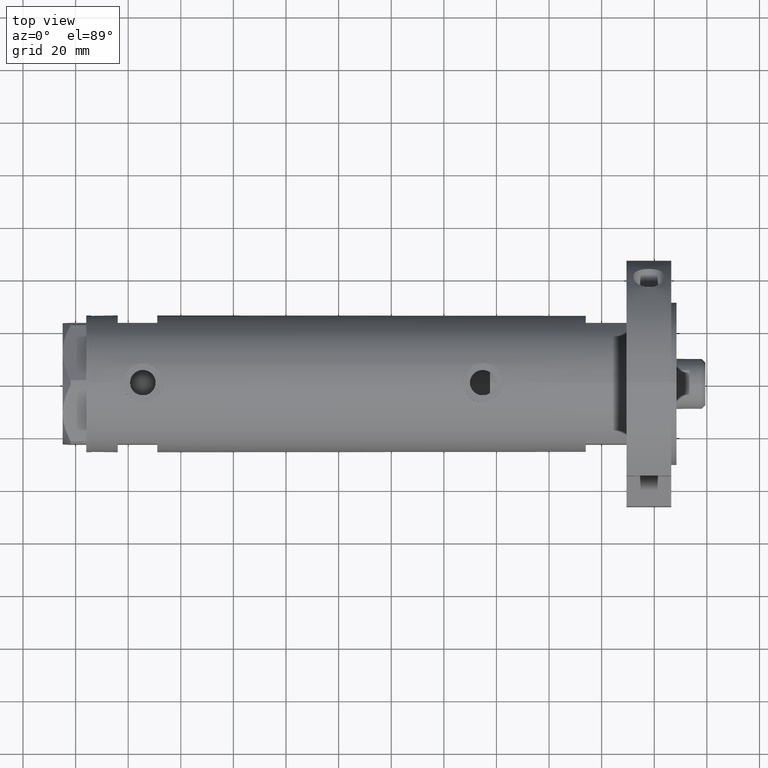
[diagram: clean part render]
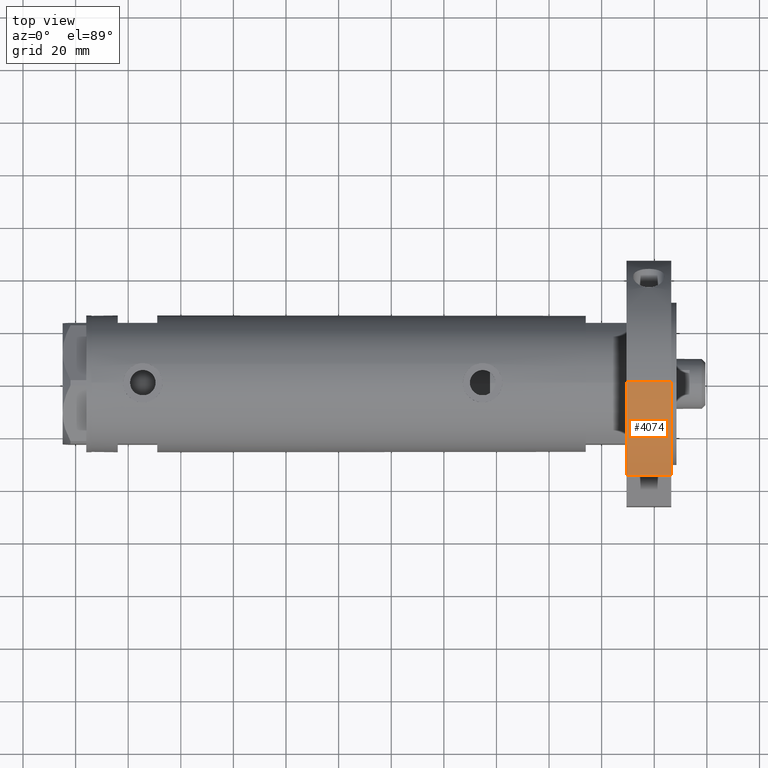
[diagram: same view with one face highlighted and labeled with its STEP entity id]
A machine part, top view. The second image highlights one B-rep face of the part: STEP entity #4074.
In plain terms, the highlighted cylindrical surface (partial cylindrical patch) has radius 47 mm, axis along (-1, -0, 0).
Its self-contained STEP definition (entity closure, byte-faithful):
#230 = DIRECTION ( 'NONE',  ( 0.000000000000000000, 0.000000000000000000, 1.000000000000000000 ) ) ;
#586 = FACE_OUTER_BOUND ( 'NONE', #5722, .T. ) ;
#611 = LINE ( 'NONE', #6011, #1357 ) ;
#627 = ORIENTED_EDGE ( 'NONE', *, *, #2639, .F. ) ;
#770 = VERTEX_POINT ( 'NONE', #6211 ) ;
#858 = VERTEX_POINT ( 'NONE', #2864 ) ;
#861 = CIRCLE ( 'NONE', #4645, 46.99999999999999289 ) ;
#992 = DIRECTION ( 'NONE',  ( 1.000000000000000000, 0.000000000000000000, 0.000000000000000000 ) ) ;
#1049 = DIRECTION ( 'NONE',  ( -0.000000000000000000, -0.000000000000000000, -1.000000000000000000 ) ) ;
#1158 = VERTEX_POINT ( 'NONE', #3111 ) ;
#1357 = VECTOR ( 'NONE', #4569, 1000.000000000000000 ) ;
#1512 = DIRECTION ( 'NONE',  ( -1.000000000000000000, 0.000000000000000000, 0.000000000000000000 ) ) ;
#1522 = DIRECTION ( 'NONE',  ( -0.000000000000000000, -0.000000000000000000, 1.000000000000000000 ) ) ;
#1617 = CYLINDRICAL_SURFACE ( 'NONE', #4336, 46.99999999999999289 ) ;
#1675 = CARTESIAN_POINT ( 'NONE',  ( 0.000000000000000000, 0.000000000000000000, 17.00000000000000000 ) ) ;
#1807 = EDGE_CURVE ( 'NONE', #1158, #4574, #611, .T. ) ;
#1826 = CARTESIAN_POINT ( 'NONE',  ( 46.99999999999999289, 5.755839955992559063E-15, 0.000000000000000000 ) ) ;
#2639 = EDGE_CURVE ( 'NONE', #1158, #770, #6196, .T. ) ;
#2864 = CARTESIAN_POINT ( 'NONE',  ( 30.83217135699462830, 35.47361286101148892, 0.000000000000000000 ) ) ;
#3111 = CARTESIAN_POINT ( 'NONE',  ( 46.99999999999999289, 5.755839955992559063E-15, 17.00000000000000000 ) ) ;
#3866 = DIRECTION ( 'NONE',  ( 1.000000000000000000, 0.000000000000000000, 0.000000000000000000 ) ) ;
#3944 = ORIENTED_EDGE ( 'NONE', *, *, #5548, .T. ) ;
#4033 = ORIENTED_EDGE ( 'NONE', *, *, #1807, .T. ) ;
#4064 = LINE ( 'NONE', #5439, #4874 ) ;
#4074 = ADVANCED_FACE ( 'NONE', ( #586 ), #1617, .T. ) ;
#4336 = AXIS2_PLACEMENT_3D ( 'NONE', #5067, #1049, #1512 ) ;
#4362 = DIRECTION ( 'NONE',  ( 0.000000000000000000, 0.000000000000000000, 1.000000000000000000 ) ) ;
#4475 = CARTESIAN_POINT ( 'NONE',  ( 0.000000000000000000, 0.000000000000000000, 0.000000000000000000 ) ) ;
#4569 = DIRECTION ( 'NONE',  ( -0.000000000000000000, -0.000000000000000000, -1.000000000000000000 ) ) ;
#4574 = VERTEX_POINT ( 'NONE', #1826 ) ;
#4645 = AXIS2_PLACEMENT_3D ( 'NONE', #4475, #4362, #3866 ) ;
#4694 = EDGE_CURVE ( 'NONE', #4574, #858, #861, .T. ) ;
#4874 = VECTOR ( 'NONE', #1522, 1000.000000000000000 ) ;
#5067 = CARTESIAN_POINT ( 'NONE',  ( 0.000000000000000000, 0.000000000000000000, 17.00000000000000000 ) ) ;
#5439 = CARTESIAN_POINT ( 'NONE',  ( 30.83217135699462830, 35.47361286101148892, 0.000000000000000000 ) ) ;
#5548 = EDGE_CURVE ( 'NONE', #858, #770, #4064, .T. ) ;
#5722 = EDGE_LOOP ( 'NONE', ( #627, #4033, #6145, #3944 ) ) ;
#6011 = CARTESIAN_POINT ( 'NONE',  ( 46.99999999999999289, 5.755839955992559063E-15, 17.00000000000000000 ) ) ;
#6145 = ORIENTED_EDGE ( 'NONE', *, *, #4694, .T. ) ;
#6196 = CIRCLE ( 'NONE', #6495, 46.99999999999999289 ) ;
#6211 = CARTESIAN_POINT ( 'NONE',  ( 30.83217135699462830, 35.47361286101148892, 17.00000000000000000 ) ) ;
#6495 = AXIS2_PLACEMENT_3D ( 'NONE', #1675, #230, #992 ) ;